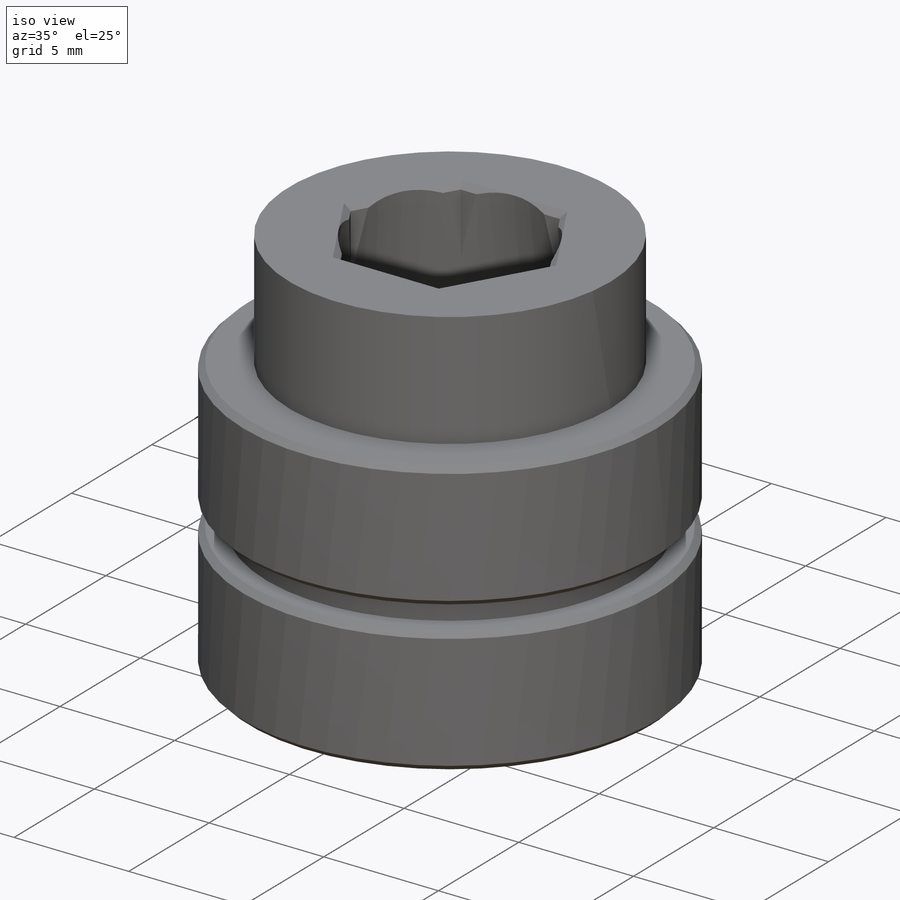
[diagram: iso view]
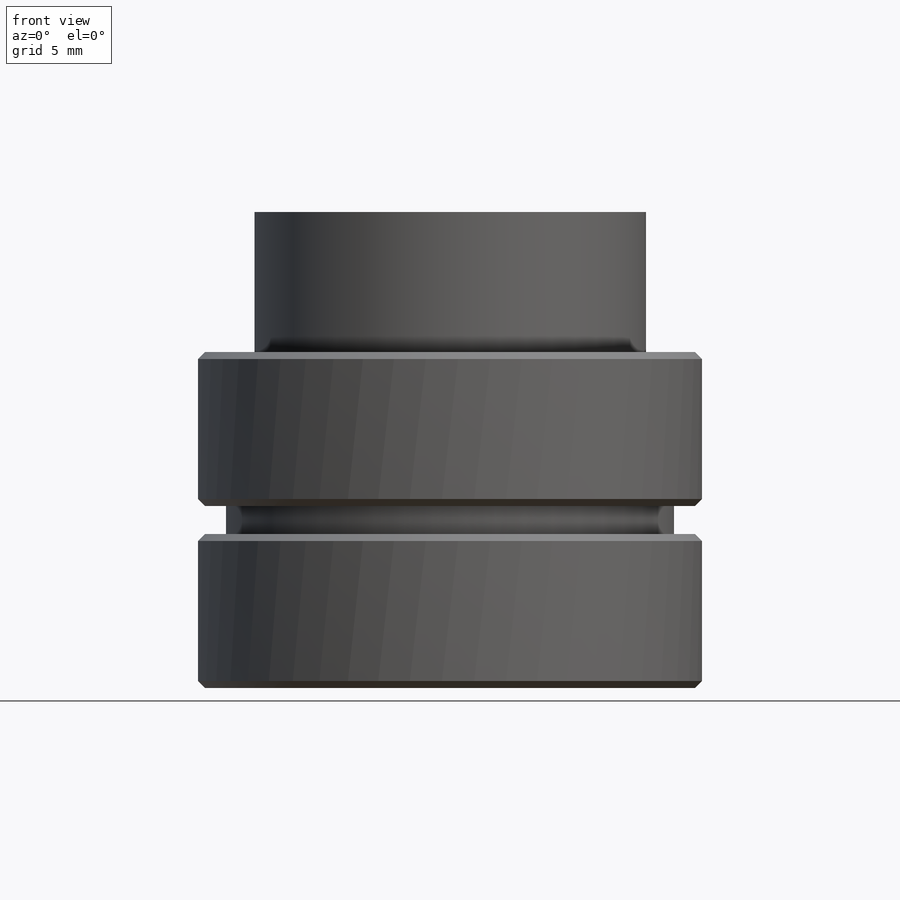
[diagram: front view]
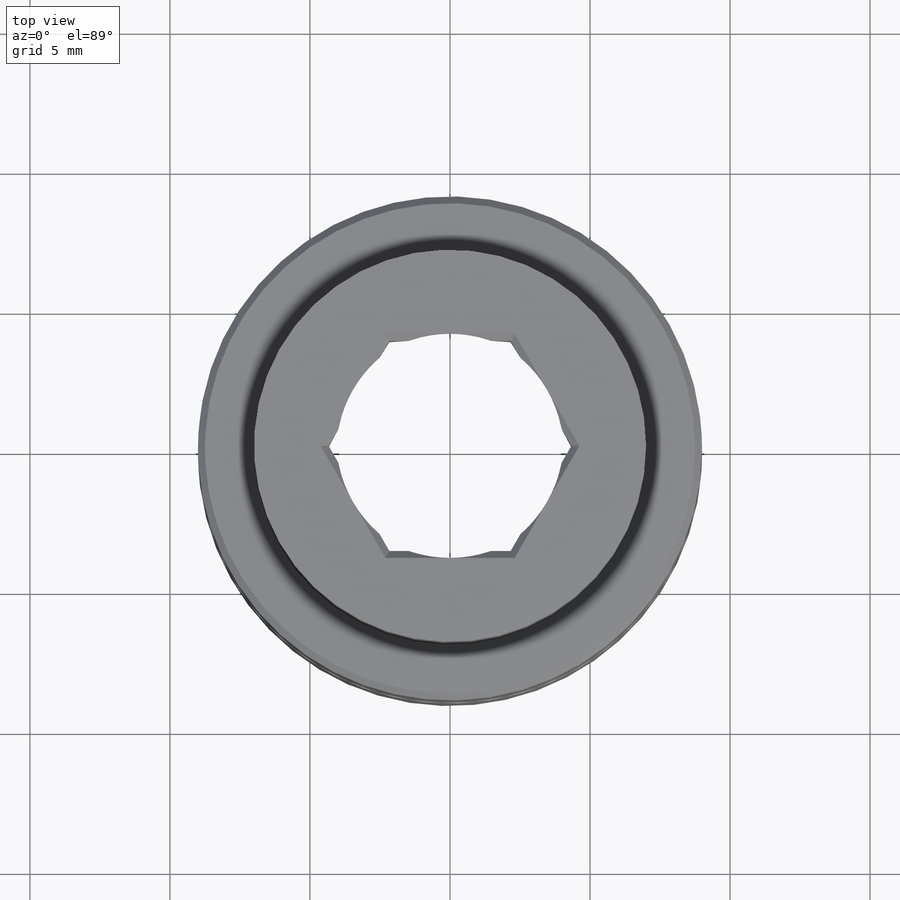
[diagram: top view]
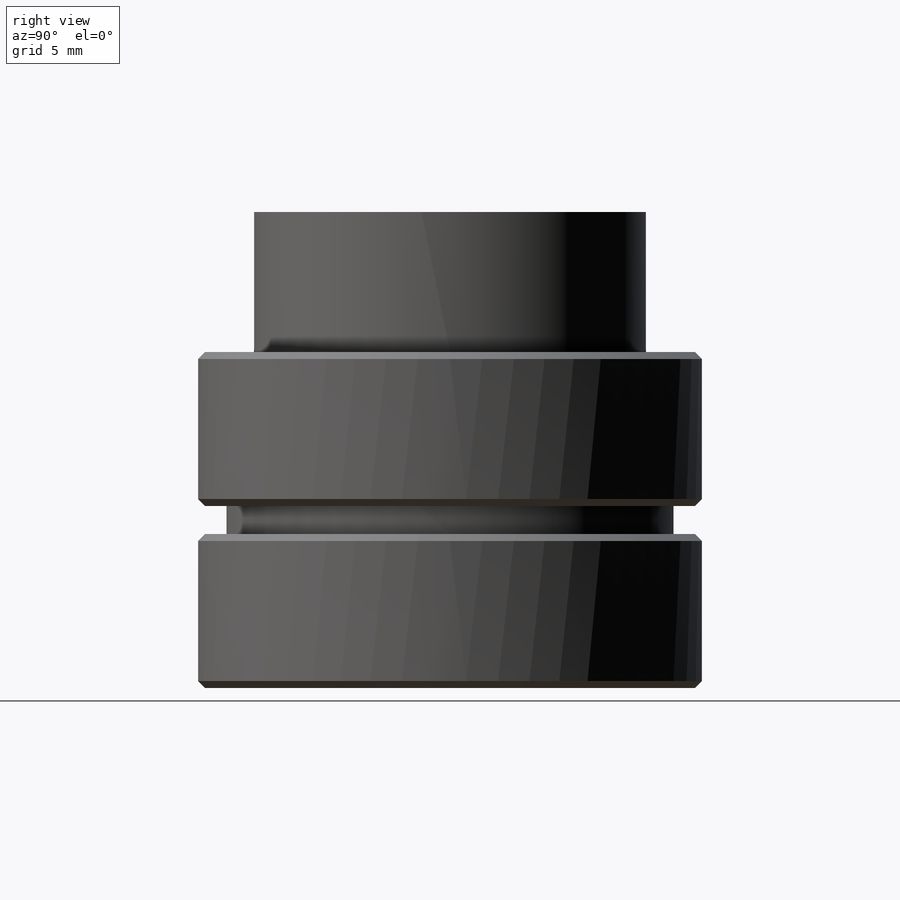
[diagram: right view]
SOLIDWORKS PART (.sldprt)
format: sldprt  version: not decoded by parser v0  size: 265,728 bytes
history: native  units: mm
features: sketch x5, plane x4, chamfer x2, cut_extrude x2, material x1, revolve x1 (+10 scaffold rows collapsed)
feature tree (25):
  scaffold x10  (default folders/planes/origin — collapsed)
  material  "Material <nicht angegeben>"
  plane  "Ebene vorne"
  plane  "Ebene oben"
  plane  "Ebene rechts"
  sketch  "Skizze1"  dims[D1=9.0mm D2=8.0mm D3=1.0mm D4=9.0mm D5=5.5mm D6=5.5mm D7=7.0mm D8=5.0mm D9=5.5mm D10=6.5mm D11=12.0mm]
  revolve  "Rotation1"  Angle=360deg
  chamfer  "Fase1"  Distance=0.25mm Angle=45deg
  plane  "Ebene1"
  sketch  "Skizze2"  dims[D1=7.5mm]
  cut_extrude  "Schnitt-Linear austragen1"  [1 undecoded]
  chamfer  "Fase2"  Distance=0.25mm Angle=45deg
  sketch  "Skizze3"  dims[D1=15.0mm]
  cut_extrude  "Schnitt-Linear austragen2"  Depth=10mm
  sketch  "Skizze4"
  sketch  "Skizze5"  dims[D1=8.0mm]
decode coverage: 8 of 10 modeling features carry decoded parameters
note: 1 parameter value undecoded
note: suppression state not decoded; provenance and decode notes live in map.json
